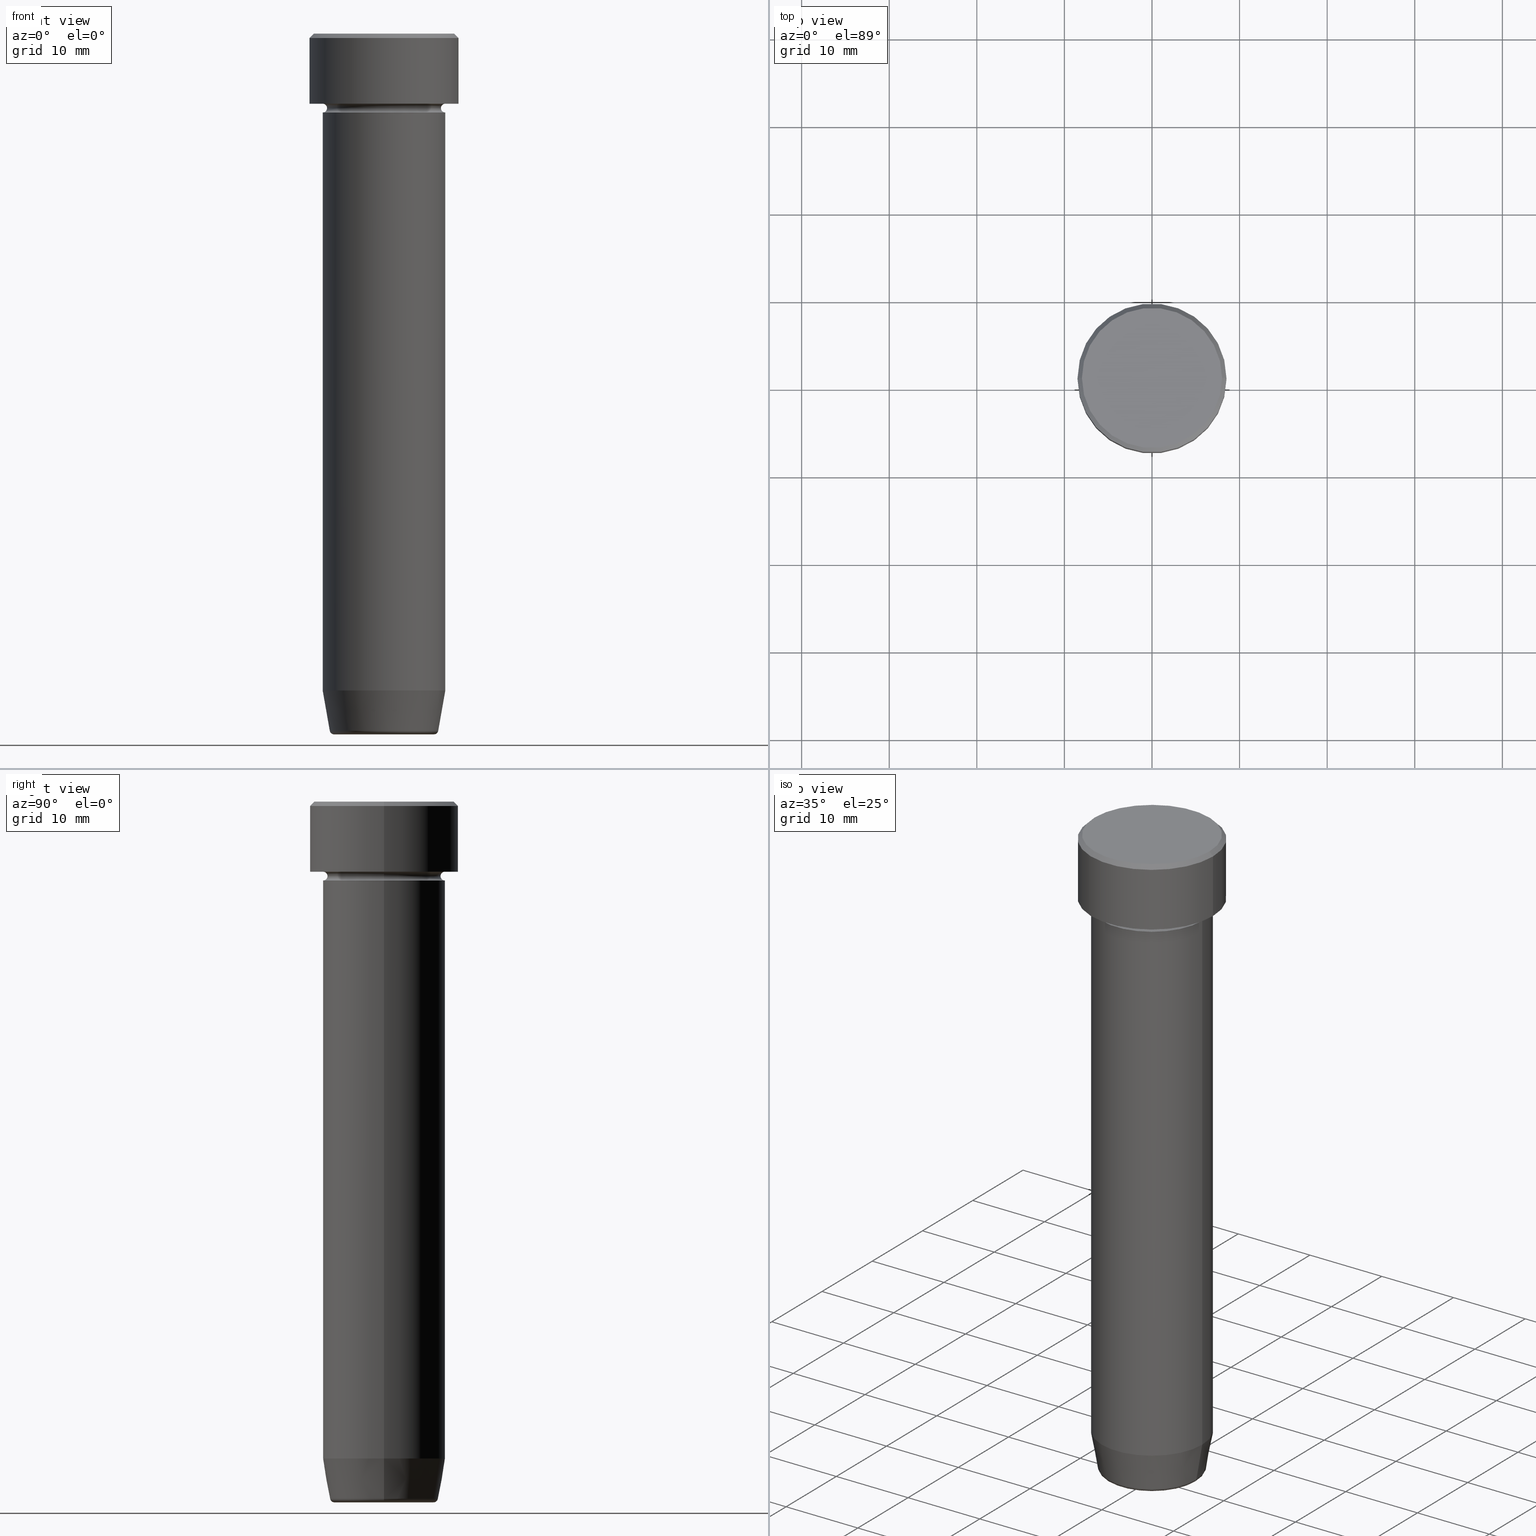
[diagram: canonical four-view strip — front | top / right | iso, engineering-drawing reading convention]
A machine part, canonical four-view strip (front | top / right | iso — engineering-drawing reading convention). The complete STEP part file that produces these views, byte-faithful:
ISO-10303-21;
HEADER;
FILE_DESCRIPTION (( 'STEP AP203' ),
    '1' );
FILE_NAME ('2389.STEP',
    '2024-01-02T23:20:47',
    ( '' ),
    ( '' ),
    'SwSTEP 2.0',
    'SolidWorks 2019',
    '' );
FILE_SCHEMA (( 'CONFIG_CONTROL_DESIGN' ));
ENDSEC;

DATA;
#1 = CARTESIAN_POINT ( 'NONE',  ( 0.000000000000000000, 0.000000000000000000, -22.00000000000000000 ) ) ;
#2 = EDGE_LOOP ( 'NONE', ( #319, #564, #162, #359 ) ) ;
#3 = ADVANCED_FACE ( 'NONE', ( #129 ), #371, .T. ) ;
#4 = ORIENTED_EDGE ( 'NONE', *, *, #369, .F. ) ;
#5 = DIRECTION ( 'NONE',  ( -0.000000000000000000, -0.000000000000000000, 1.000000000000000000 ) ) ;
#6 = LOCAL_TIME ( 0, 20, 47.00000000000000000, #509 ) ;
#7 = EDGE_LOOP ( 'NONE', ( #586, #28, #495, #590 ) ) ;
#8 = AXIS2_PLACEMENT_3D ( 'NONE', #55, #420, #464 ) ;
#9 = AXIS2_PLACEMENT_3D ( 'NONE', #291, #524, #473 ) ;
#10 = AXIS2_PLACEMENT_3D ( 'NONE', #350, #42, #305 ) ;
#11 = CARTESIAN_POINT ( 'NONE',  ( 0.000000000000000000, 0.000000000000000000, -75.00000000000000000 ) ) ;
#12 = VERTEX_POINT ( 'NONE', #132 ) ;
#13 = CARTESIAN_POINT ( 'NONE',  ( -7.000000000000000888, 8.572527594031474176E-16, -9.000000000000001776 ) ) ;
#14 = CC_DESIGN_PERSON_AND_ORGANIZATION_ASSIGNMENT ( #339, #137, ( #82 ) ) ;
#15 = CARTESIAN_POINT ( 'NONE',  ( 0.000000000000000000, 0.000000000000000000, 0.000000000000000000 ) ) ;
#16 = DIRECTION ( 'NONE',  ( 1.000000000000000000, 0.000000000000000000, 0.000000000000000000 ) ) ;
#17 = EDGE_CURVE ( 'NONE', #148, #322, #517, .T. ) ;
#18 = CARTESIAN_POINT ( 'NONE',  ( -8.500000000000000000, 1.040949779275250140E-15, -8.000000000000000000 ) ) ;
#19 = PERSON_AND_ORGANIZATION ( #201, #597 ) ;
#20 = LINE ( 'NONE', #409, #103 ) ;
#21 = CARTESIAN_POINT ( 'NONE',  ( 0.000000000000000000, 0.000000000000000000, -8.000000000000000000 ) ) ;
#22 = EDGE_CURVE ( 'NONE', #341, #109, #367, .T. ) ;
#23 = APPLICATION_PROTOCOL_DEFINITION ( 'international standard', 'config_control_design', 1994, #209 ) ;
#24 = CARTESIAN_POINT ( 'NONE',  ( -6.999999999999999112, 8.572527594031472204E-16, -75.00000000000000000 ) ) ;
#25 = PRODUCT ( '2389', '2389', '', ( #574 ) ) ;
#26 = DIRECTION ( 'NONE',  ( 0.000000000000000000, 0.000000000000000000, -1.000000000000000000 ) ) ;
#27 = EDGE_LOOP ( 'NONE', ( #463, #412 ) ) ;
#28 = ORIENTED_EDGE ( 'NONE', *, *, #489, .T. ) ;
#29 = EDGE_CURVE ( 'NONE', #541, #38, #196, .T. ) ;
#30 = VECTOR ( 'NONE', #508, 999.9999999999998863 ) ;
#31 = LINE ( 'NONE', #349, #143 ) ;
#32 = ORIENTED_EDGE ( 'NONE', *, *, #513, .T. ) ;
#33 = EDGE_CURVE ( 'NONE', #240, #87, #31, .T. ) ;
#34 = DIRECTION ( 'NONE',  ( 0.000000000000000000, -1.000000000000000000, 0.000000000000000000 ) ) ;
#35 = ORIENTED_EDGE ( 'NONE', *, *, #419, .F. ) ;
#36 = DIRECTION ( 'NONE',  ( -0.000000000000000000, -0.000000000000000000, 1.000000000000000000 ) ) ;
#37 = PLANE ( 'NONE',  #54 ) ;
#38 = VERTEX_POINT ( 'NONE', #262 ) ;
#39 = AXIS2_PLACEMENT_3D ( 'NONE', #230, #378, #380 ) ;
#40 = CARTESIAN_POINT ( 'NONE',  ( 0.000000000000000000, 0.000000000000000000, -79.58682408883346682 ) ) ;
#41 = CARTESIAN_POINT ( 'NONE',  ( -6.999999999999999112, 8.572527594031472204E-16, 0.000000000000000000 ) ) ;
#42 = DIRECTION ( 'NONE',  ( 1.224646799147353207E-16, 1.000000000000000000, 0.000000000000000000 ) ) ;
#43 = VECTOR ( 'NONE', #144, 1000.000000000000000 ) ;
#44 = ADVANCED_FACE ( 'NONE', ( #303 ), #72, .T. ) ;
#45 = DIRECTION ( 'NONE',  ( 1.000000000000000000, 0.000000000000000000, 0.000000000000000000 ) ) ;
#46 = CARTESIAN_POINT ( 'NONE',  ( -7.000000000000000888, 0.000000000000000000, -8.500000000000000000 ) ) ;
#47 = EDGE_LOOP ( 'NONE', ( #494, #440, #4, #277 ) ) ;
#48 = CARTESIAN_POINT ( 'NONE',  ( 0.000000000000000000, 0.000000000000000000, 0.000000000000000000 ) ) ;
#49 = AXIS2_PLACEMENT_3D ( 'NONE', #90, #465, #16 ) ;
#50 = CONICAL_SURFACE ( 'NONE', #281, 8.000000000000000000, 0.7853981633974500554 ) ;
#51 = ADVANCED_FACE ( 'NONE', ( #84 ), #212, .T. ) ;
#52 = DIRECTION ( 'NONE',  ( -0.000000000000000000, -0.000000000000000000, 1.000000000000000000 ) ) ;
#53 = CARTESIAN_POINT ( 'NONE',  ( -6.999999999999999112, 8.572527594031472204E-16, -22.00000000000000000 ) ) ;
#54 = AXIS2_PLACEMENT_3D ( 'NONE', #153, #598, #394 ) ;
#55 = CARTESIAN_POINT ( 'NONE',  ( 0.000000000000000000, 0.000000000000000000, 0.000000000000000000 ) ) ;
#56 = ORIENTED_EDGE ( 'NONE', *, *, #265, .T. ) ;
#57 = EDGE_CURVE ( 'NONE', #240, #12, #423, .T. ) ;
#58 = EDGE_LOOP ( 'NONE', ( #454, #328, #171, #111 ) ) ;
#59 = ADVANCED_FACE ( 'NONE', ( #501 ), #368, .F. ) ;
#60 = PLANE ( 'NONE',  #141 ) ;
#61 = DIRECTION ( 'NONE',  ( 1.000000000000000000, 0.000000000000000000, 0.000000000000000000 ) ) ;
#62 = DIRECTION ( 'NONE',  ( -1.000000000000000000, 0.000000000000000000, -0.000000000000000000 ) ) ;
#63 = AXIS2_PLACEMENT_3D ( 'NONE', #48, #233, #138 ) ;
#64 = CARTESIAN_POINT ( 'NONE',  ( 0.000000000000000000, 0.000000000000000000, 0.000000000000000000 ) ) ;
#65 =( NAMED_UNIT ( * ) SI_UNIT ( $, .STERADIAN. ) SOLID_ANGLE_UNIT ( ) );
#66 = EDGE_LOOP ( 'NONE', ( #477, #498 ) ) ;
#67 = ORIENTED_EDGE ( 'NONE', *, *, #204, .F. ) ;
#68 = LINE ( 'NONE', #353, #112 ) ;
#69 = DIRECTION ( 'NONE',  ( -0.000000000000000000, -0.000000000000000000, 1.000000000000000000 ) ) ;
#70 = ORIENTED_EDGE ( 'NONE', *, *, #513, .F. ) ;
#71 = EDGE_CURVE ( 'NONE', #480, #300, #260, .T. ) ;
#72 = CYLINDRICAL_SURFACE ( 'NONE', #195, 6.999999999999999112 ) ;
#73 = DATE_AND_TIME ( #485, #437 ) ;
#74 = DIRECTION ( 'NONE',  ( 1.000000000000000000, 0.000000000000000000, 0.000000000000000000 ) ) ;
#75 = EDGE_LOOP ( 'NONE', ( #284, #227, #215, #595 ) ) ;
#76 = PLANE ( 'NONE',  #421 ) ;
#77 = COORDINATED_UNIVERSAL_TIME_OFFSET ( 1, 0, .AHEAD. ) ;
#78 = AXIS2_PLACEMENT_3D ( 'NONE', #267, #358, #117 ) ;
#79 = APPROVAL_DATE_TIME ( #561, #436 ) ;
#80 = CARTESIAN_POINT ( 'NONE',  ( 0.000000000000000000, 0.000000000000000000, -80.00000000000001421 ) ) ;
#81 = CARTESIAN_POINT ( 'NONE',  ( 5.698815280869032662, 0.000000000000000000, -79.50000000000001421 ) ) ;
#82 = PRODUCT_DEFINITION_FORMATION_WITH_SPECIFIED_SOURCE ( 'LIBOVOLN�', '', #25, .NOT_KNOWN. ) ;
#83 = CIRCLE ( 'NONE', #562, 6.999999999999999112 ) ;
#84 = FACE_OUTER_BOUND ( 'NONE', #75, .T. ) ;
#85 = DIRECTION ( 'NONE',  ( 1.000000000000000000, 0.000000000000000000, 0.000000000000000000 ) ) ;
#86 = ORIENTED_EDGE ( 'NONE', *, *, #173, .F. ) ;
#87 = VERTEX_POINT ( 'NONE', #169 ) ;
#88 = EDGE_CURVE ( 'NONE', #480, #390, #228, .T. ) ;
#89 = CARTESIAN_POINT ( 'NONE',  ( 0.000000000000000000, 0.000000000000000000, -0.4999999999999987232 ) ) ;
#90 = CARTESIAN_POINT ( 'NONE',  ( 0.000000000000000000, 0.000000000000000000, -80.00000000000001421 ) ) ;
#91 = DIRECTION ( 'NONE',  ( -0.000000000000000000, -0.000000000000000000, 1.000000000000000000 ) ) ;
#92 = CARTESIAN_POINT ( 'NONE',  ( 0.000000000000000000, 0.000000000000000000, -79.50000000000001421 ) ) ;
#93 = ADVANCED_FACE ( 'NONE', ( #589 ), #37, .F. ) ;
#94 = PERSON_AND_ORGANIZATION ( #201, #597 ) ;
#95 = DIRECTION ( 'NONE',  ( -0.000000000000000000, -0.000000000000000000, 1.000000000000000000 ) ) ;
#96 = DIRECTION ( 'NONE',  ( -0.000000000000000000, -0.000000000000000000, 1.000000000000000000 ) ) ;
#97 = EDGE_CURVE ( 'NONE', #386, #541, #455, .T. ) ;
#98 = CARTESIAN_POINT ( 'NONE',  ( 0.000000000000000000, 0.000000000000000000, -0.4999999999999987232 ) ) ;
#99 = CIRCLE ( 'NONE', #429, 6.191219157375138948 ) ;
#100 = DIRECTION ( 'NONE',  ( 1.000000000000000000, 0.000000000000000000, 0.000000000000000000 ) ) ;
#101 = CC_DESIGN_DATE_AND_TIME_ASSIGNMENT ( #496, #266, ( #411 ) ) ;
#102 = AXIS2_PLACEMENT_3D ( 'NONE', #332, #96, #426 ) ;
#103 = VECTOR ( 'NONE', #190, 1000.000000000000000 ) ;
#104 = EDGE_CURVE ( 'NONE', #298, #109, #99, .T. ) ;
#105 =( LENGTH_UNIT ( ) NAMED_UNIT ( * ) SI_UNIT ( .MILLI., .METRE. ) );
#106 = ORIENTED_EDGE ( 'NONE', *, *, #582, .T. ) ;
#107 = DIRECTION ( 'NONE',  ( -0.000000000000000000, -1.000000000000000000, -0.000000000000000000 ) ) ;
#108 = APPROVAL ( #116, 'NEUR�EN�' ) ;
#109 = VERTEX_POINT ( 'NONE', #479 ) ;
#110 = DIRECTION ( 'NONE',  ( -0.000000000000000000, -0.000000000000000000, 1.000000000000000000 ) ) ;
#111 = ORIENTED_EDGE ( 'NONE', *, *, #327, .F. ) ;
#112 = VECTOR ( 'NONE', #155, 999.9999999999998863 ) ;
#113 = CIRCLE ( 'NONE', #248, 0.5000000000000004441 ) ;
#114 = DIRECTION ( 'NONE',  ( -0.000000000000000000, -0.000000000000000000, 1.000000000000000000 ) ) ;
#115 = EDGE_CURVE ( 'NONE', #223, #480, #253, .T. ) ;
#116 = APPROVAL_STATUS ( 'not_yet_approved' ) ;
#117 = DIRECTION ( 'NONE',  ( -1.000000000000000000, 0.000000000000000000, 0.000000000000000000 ) ) ;
#118 = PLANE ( 'NONE',  #384 ) ;
#119 = EDGE_LOOP ( 'NONE', ( #551, #263, #555, #208 ) ) ;
#120 = AXIS2_PLACEMENT_3D ( 'NONE', #181, #95, #570 ) ;
#121 = ADVANCED_FACE ( 'NONE', ( #550 ), #118, .T. ) ;
#122 = EDGE_LOOP ( 'NONE', ( #346, #478, #282, #166 ) ) ;
#123 = ADVANCED_BREP_SHAPE_REPRESENTATION ( '2389', ( #391, #193, #184 ), #407 ) ;
#124 = CYLINDRICAL_SURFACE ( 'NONE', #408, 8.500000000000000000 ) ;
#125 = ORIENTED_EDGE ( 'NONE', *, *, #136, .F. ) ;
#126 = ADVANCED_FACE ( 'NONE', ( #316 ), #583, .T. ) ;
#127 = LINE ( 'NONE', #234, #30 ) ;
#128 = DIRECTION ( 'NONE',  ( -0.000000000000000000, -0.000000000000000000, 1.000000000000000000 ) ) ;
#129 = FACE_OUTER_BOUND ( 'NONE', #405, .T. ) ;
#130 = FACE_BOUND ( 'NONE', #175, .T. ) ;
#131 = CC_DESIGN_APPROVAL ( #180, ( #411 ) ) ;
#132 = CARTESIAN_POINT ( 'NONE',  ( 8.000000000000000000, 1.010333609296566550E-15, 0.000000000000000000 ) ) ;
#133 = VECTOR ( 'NONE', #576, 1000.000000000000000 ) ;
#134 = EDGE_CURVE ( 'NONE', #276, #158, #207, .T. ) ;
#135 = CARTESIAN_POINT ( 'NONE',  ( 0.000000000000000000, 8.500000000000000000, -8.000000000000000000 ) ) ;
#136 = EDGE_CURVE ( 'NONE', #560, #298, #313, .T. ) ;
#137 = PERSON_AND_ORGANIZATION_ROLE ( 'creator' ) ;
#138 = DIRECTION ( 'NONE',  ( 1.000000000000000000, 0.000000000000000000, 0.000000000000000000 ) ) ;
#139 = FACE_OUTER_BOUND ( 'NONE', #7, .T. ) ;
#140 = EDGE_LOOP ( 'NONE', ( #257, #534, #67, #179 ) ) ;
#141 = AXIS2_PLACEMENT_3D ( 'NONE', #135, #238, #469 ) ;
#142 = DIRECTION ( 'NONE',  ( -0.000000000000000000, -0.000000000000000000, 1.000000000000000000 ) ) ;
#143 = VECTOR ( 'NONE', #484, 1000.000000000000000 ) ;
#144 = DIRECTION ( 'NONE',  ( -0.000000000000000000, -0.000000000000000000, 1.000000000000000000 ) ) ;
#145 = ADVANCED_FACE ( 'NONE', ( #161 ), #343, .F. ) ;
#146 = DIRECTION ( 'NONE',  ( -1.000000000000000000, 0.000000000000000000, 0.000000000000000000 ) ) ;
#147 = CARTESIAN_POINT ( 'NONE',  ( 8.000000000000000000, 9.797174393178825657E-16, 0.000000000000000000 ) ) ;
#148 = VERTEX_POINT ( 'NONE', #354 ) ;
#149 = CLOSED_SHELL ( 'NONE', ( #500, #548, #532, #150, #3, #126, #93, #569 ) ) ;
#150 = ADVANCED_FACE ( 'NONE', ( #312 ), #497, .F. ) ;
#151 = CARTESIAN_POINT ( 'NONE',  ( 0.000000000000000000, 0.000000000000000000, 0.000000000000000000 ) ) ;
#152 = ORIENTED_EDGE ( 'NONE', *, *, #582, .F. ) ;
#153 = CARTESIAN_POINT ( 'NONE',  ( 0.000000000000000000, 3.673940397442061544E-15, -80.00000000000001421 ) ) ;
#154 = VERTEX_POINT ( 'NONE', #24 ) ;
#155 = DIRECTION ( 'NONE',  ( -0.1736481776669298038, 2.126576849575764827E-17, 0.9848077530122082424 ) ) ;
#156 = ORIENTED_EDGE ( 'NONE', *, *, #342, .T. ) ;
#157 = DIRECTION ( 'NONE',  ( 1.000000000000000000, 0.000000000000000000, 0.000000000000000000 ) ) ;
#158 = VERTEX_POINT ( 'NONE', #241 ) ;
#159 = CARTESIAN_POINT ( 'NONE',  ( -8.000000000000000000, 0.000000000000000000, 0.000000000000000000 ) ) ;
#160 = CARTESIAN_POINT ( 'NONE',  ( 6.999999999999999112, 0.000000000000000000, 0.000000000000000000 ) ) ;
#161 = FACE_OUTER_BOUND ( 'NONE', #460, .T. ) ;
#162 = ORIENTED_EDGE ( 'NONE', *, *, #467, .T. ) ;
#163 = CIRCLE ( 'NONE', #382, 5.698815280869032662 ) ;
#164 = CARTESIAN_POINT ( 'NONE',  ( 0.000000000000000000, 0.000000000000000000, -79.58682408883346682 ) ) ;
#165 = AXIS2_PLACEMENT_3D ( 'NONE', #536, #396, #546 ) ;
#166 = ORIENTED_EDGE ( 'NONE', *, *, #231, .F. ) ;
#167 = CARTESIAN_POINT ( 'NONE',  ( 6.999999999999999112, 0.000000000000000000, -22.00000000000000000 ) ) ;
#168 = CARTESIAN_POINT ( 'NONE',  ( 7.000000000000000888, 8.572527594031474176E-16, -8.500000000000000000 ) ) ;
#169 = CARTESIAN_POINT ( 'NONE',  ( -8.500000000000000000, 1.040949779275250140E-15, -0.4999999999999987232 ) ) ;
#170 = DIRECTION ( 'NONE',  ( 1.000000000000000000, 0.000000000000000000, 0.000000000000000000 ) ) ;
#171 = ORIENTED_EDGE ( 'NONE', *, *, #379, .T. ) ;
#172 = LOCAL_TIME ( 0, 20, 47.00000000000000000, #77 ) ;
#173 = EDGE_CURVE ( 'NONE', #299, #87, #428, .T. ) ;
#174 = CALENDAR_DATE ( 2024, 3, 1 ) ;
#175 = EDGE_LOOP ( 'NONE', ( #565, #32 ) ) ;
#176 = CARTESIAN_POINT ( 'NONE',  ( 0.000000000000000000, 0.000000000000000000, -22.00000000000000000 ) ) ;
#177 = AXIS2_PLACEMENT_3D ( 'NONE', #389, #592, #157 ) ;
#178 = CYLINDRICAL_SURFACE ( 'NONE', #580, 6.999999999999999112 ) ;
#179 = ORIENTED_EDGE ( 'NONE', *, *, #88, .F. ) ;
#180 = APPROVAL ( #337, 'NEUR�EN�' ) ;
#181 = CARTESIAN_POINT ( 'NONE',  ( 0.000000000000000000, 0.000000000000000000, -9.000000000000001776 ) ) ;
#182 = CARTESIAN_POINT ( 'NONE',  ( 5.698815280869032662, 0.000000000000000000, -80.00000000000001421 ) ) ;
#183 = COORDINATED_UNIVERSAL_TIME_OFFSET ( 1, 0, .AHEAD. ) ;
#184 = AXIS2_PLACEMENT_3D ( 'NONE', #64, #374, #61 ) ;
#185 = CIRCLE ( 'NONE', #366, 7.000000000000000000 ) ;
#186 = CALENDAR_DATE ( 2024, 3, 1 ) ;
#187 = LINE ( 'NONE', #377, #133 ) ;
#188 = DIRECTION ( 'NONE',  ( -0.000000000000000000, -0.000000000000000000, 1.000000000000000000 ) ) ;
#189 = PERSON_AND_ORGANIZATION_ROLE ( 'design_owner' ) ;
#190 = DIRECTION ( 'NONE',  ( -0.000000000000000000, -0.000000000000000000, 1.000000000000000000 ) ) ;
#191 = DIRECTION ( 'NONE',  ( 1.000000000000000000, 0.000000000000000000, 0.000000000000000000 ) ) ;
#192 = APPROVAL_DATE_TIME ( #232, #108 ) ;
#193 = MANIFOLD_SOLID_BREP ( 'Zaoblit4', #149 ) ;
#194 = AXIS2_PLACEMENT_3D ( 'NONE', #89, #285, #471 ) ;
#195 = AXIS2_PLACEMENT_3D ( 'NONE', #588, #447, #220 ) ;
#196 = LINE ( 'NONE', #160, #410 ) ;
#197 = DIRECTION ( 'NONE',  ( 1.000000000000000000, 0.000000000000000000, 0.000000000000000000 ) ) ;
#198 = CIRCLE ( 'NONE', #552, 7.000000000000000888 ) ;
#199 = APPROVAL_STATUS ( 'not_yet_approved' ) ;
#200 = EDGE_LOOP ( 'NONE', ( #318, #568, #544, #302 ) ) ;
#201 = PERSON ( 'NEUR�EN�', 'NEUR�EN�', 'NEUR�EN�', ('NEUR�EN�'), ('NEUR�EN�'), ('NEUR�EN�') ) ;
#202 = TOROIDAL_SURFACE ( 'NONE', #336, 7.000000000000000888, 0.5000000000000000000 ) ;
#203 = ORIENTED_EDGE ( 'NONE', *, *, #327, .T. ) ;
#204 = EDGE_CURVE ( 'NONE', #390, #575, #198, .T. ) ;
#205 = DIRECTION ( 'NONE',  ( -0.000000000000000000, -0.000000000000000000, 1.000000000000000000 ) ) ;
#206 = DIRECTION ( 'NONE',  ( -0.000000000000000000, -0.000000000000000000, 1.000000000000000000 ) ) ;
#207 = CIRCLE ( 'NONE', #567, 6.999999999999999112 ) ;
#208 = ORIENTED_EDGE ( 'NONE', *, *, #29, .F. ) ;
#209 = APPLICATION_CONTEXT ( 'configuration controlled 3d designs of mechanical parts and assemblies' ) ;
#210 = DIRECTION ( 'NONE',  ( -1.000000000000000000, 0.000000000000000000, 0.000000000000000000 ) ) ;
#211 = DIRECTION ( 'NONE',  ( 1.000000000000000000, 0.000000000000000000, 0.000000000000000000 ) ) ;
#212 = CYLINDRICAL_SURFACE ( 'NONE', #387, 6.999999999999999112 ) ;
#213 = ADVANCED_FACE ( 'NONE', ( #528 ), #286, .F. ) ;
#214 = TOROIDAL_SURFACE ( 'NONE', #522, 5.698815280869032662, 0.5000000000000000000 ) ;
#215 = ORIENTED_EDGE ( 'NONE', *, *, #29, .T. ) ;
#216 = CARTESIAN_POINT ( 'NONE',  ( 0.000000000000000000, 0.000000000000000000, -9.000000000000001776 ) ) ;
#217 = DIRECTION ( 'NONE',  ( 1.000000000000000000, 0.000000000000000000, 0.000000000000000000 ) ) ;
#218 = EDGE_CURVE ( 'NONE', #341, #560, #163, .T. ) ;
#219 = CARTESIAN_POINT ( 'NONE',  ( -6.500000000000000888, 8.266365894244635319E-16, -8.500000000000000000 ) ) ;
#220 = DIRECTION ( 'NONE',  ( 1.000000000000000000, 0.000000000000000000, 0.000000000000000000 ) ) ;
#221 = ORIENTED_EDGE ( 'NONE', *, *, #475, .F. ) ;
#222 = AXIS2_PLACEMENT_3D ( 'NONE', #46, #107, #402 ) ;
#223 = VERTEX_POINT ( 'NONE', #430 ) ;
#224 = COORDINATED_UNIVERSAL_TIME_OFFSET ( 1, 0, .AHEAD. ) ;
#225 = AXIS2_PLACEMENT_3D ( 'NONE', #261, #5, #563 ) ;
#226 = CARTESIAN_POINT ( 'NONE',  ( 8.500000000000000000, 0.000000000000000000, -0.4999999999999987232 ) ) ;
#227 = ORIENTED_EDGE ( 'NONE', *, *, #97, .T. ) ;
#228 = CIRCLE ( 'NONE', #222, 0.5000000000000004441 ) ;
#229 = FACE_OUTER_BOUND ( 'NONE', #254, .T. ) ;
#230 = CARTESIAN_POINT ( 'NONE',  ( 0.000000000000000000, 0.000000000000000000, -75.00000000000000000 ) ) ;
#231 = EDGE_CURVE ( 'NONE', #322, #87, #432, .T. ) ;
#232 = DATE_AND_TIME ( #186, #587 ) ;
#233 = DIRECTION ( 'NONE',  ( -0.000000000000000000, -0.000000000000000000, 1.000000000000000000 ) ) ;
#234 = CARTESIAN_POINT ( 'NONE',  ( 6.118365096457673680, 0.000000000000000000, -80.00000000000001421 ) ) ;
#235 = CONICAL_SURFACE ( 'NONE', #49, 6.118365096457673680, 0.1745329251994324482 ) ;
#236 = ORIENTED_EDGE ( 'NONE', *, *, #360, .F. ) ;
#237 = PERSON_AND_ORGANIZATION_ROLE ( 'design_supplier' ) ;
#238 = DIRECTION ( 'NONE',  ( 0.000000000000000000, 0.000000000000000000, -1.000000000000000000 ) ) ;
#239 = FACE_OUTER_BOUND ( 'NONE', #200, .T. ) ;
#240 = VERTEX_POINT ( 'NONE', #159 ) ;
#241 = CARTESIAN_POINT ( 'NONE',  ( -6.999999999999999112, 8.572527594031472204E-16, -22.00000000000000000 ) ) ;
#242 = DIRECTION ( 'NONE',  ( 1.000000000000000000, 0.000000000000000000, 0.000000000000000000 ) ) ;
#243 = ADVANCED_FACE ( 'NONE', ( #352 ), #50, .T. ) ;
#244 = DIRECTION ( 'NONE',  ( -0.000000000000000000, -0.000000000000000000, 1.000000000000000000 ) ) ;
#245 = CIRCLE ( 'NONE', #395, 6.999999999999999112 ) ;
#246 = AXIS2_PLACEMENT_3D ( 'NONE', #151, #205, #45 ) ;
#247 = DIRECTION ( 'NONE',  ( 0.7071067811865487940, 8.659560562354950115E-17, -0.7071067811865463515 ) ) ;
#248 = AXIS2_PLACEMENT_3D ( 'NONE', #417, #329, #280 ) ;
#249 = DIRECTION ( 'NONE',  ( 1.000000000000000000, 0.000000000000000000, 0.000000000000000000 ) ) ;
#250 = ADVANCED_FACE ( 'NONE', ( #490 ), #76, .T. ) ;
#251 = CC_DESIGN_PERSON_AND_ORGANIZATION_ASSIGNMENT ( #19, #189, ( #25 ) ) ;
#252 = EDGE_LOOP ( 'NONE', ( #56, #355 ) ) ;
#253 = CIRCLE ( 'NONE', #527, 6.500000000000000888 ) ;
#254 = EDGE_LOOP ( 'NONE', ( #106, #269, #330, #520 ) ) ;
#255 = APPROVAL_PERSON_ORGANIZATION ( #344, #436, #278 ) ;
#256 = DIRECTION ( 'NONE',  ( 0.000000000000000000, -0.000000000000000000, 1.000000000000000000 ) ) ;
#257 = ORIENTED_EDGE ( 'NONE', *, *, #579, .T. ) ;
#258 = AXIS2_PLACEMENT_3D ( 'NONE', #462, #52, #415 ) ;
#259 = DIRECTION ( 'NONE',  ( 0.000000000000000000, 0.000000000000000000, -1.000000000000000000 ) ) ;
#260 = CIRCLE ( 'NONE', #10, 0.5000000000000004441 ) ;
#261 = CARTESIAN_POINT ( 'NONE',  ( 0.000000000000000000, 0.000000000000000000, -8.000000000000000000 ) ) ;
#262 = CARTESIAN_POINT ( 'NONE',  ( 7.000000000000000000, 0.000000000000000000, -9.000000000000001776 ) ) ;
#263 = ORIENTED_EDGE ( 'NONE', *, *, #433, .T. ) ;
#264 = CARTESIAN_POINT ( 'NONE',  ( 0.000000000000000000, 6.999999999999999112, -22.00000000000000000 ) ) ;
#265 = EDGE_CURVE ( 'NONE', #560, #341, #510, .T. ) ;
#266 = DATE_TIME_ROLE ( 'creation_date' ) ;
#267 = CARTESIAN_POINT ( 'NONE',  ( 0.000000000000000000, 0.000000000000000000, -8.500000000000000000 ) ) ;
#268 = AXIS2_PLACEMENT_3D ( 'NONE', #81, #34, #593 ) ;
#269 = ORIENTED_EDGE ( 'NONE', *, *, #173, .T. ) ;
#270 = COORDINATED_UNIVERSAL_TIME_OFFSET ( 1, 0, .AHEAD. ) ;
#271 = CARTESIAN_POINT ( 'NONE',  ( 0.000000000000000000, 0.000000000000000000, -22.00000000000000000 ) ) ;
#272 = AXIS2_PLACEMENT_3D ( 'NONE', #168, #361, #553 ) ;
#273 = EDGE_LOOP ( 'NONE', ( #507, #503, #504, #35 ) ) ;
#274 = DIRECTION ( 'NONE',  ( 1.000000000000000000, 0.000000000000000000, 0.000000000000000000 ) ) ;
#275 = EDGE_CURVE ( 'NONE', #109, #298, #356, .T. ) ;
#276 = VERTEX_POINT ( 'NONE', #167 ) ;
#277 = ORIENTED_EDGE ( 'NONE', *, *, #33, .F. ) ;
#278 = APPROVAL_ROLE ( '' ) ;
#279 = ORIENTED_EDGE ( 'NONE', *, *, #231, .T. ) ;
#280 = DIRECTION ( 'NONE',  ( 0.000000000000000000, 0.000000000000000000, -1.000000000000000000 ) ) ;
#281 = AXIS2_PLACEMENT_3D ( 'NONE', #542, #259, #210 ) ;
#282 = ORIENTED_EDGE ( 'NONE', *, *, #33, .T. ) ;
#283 = CARTESIAN_POINT ( 'NONE',  ( 0.000000000000000000, 0.000000000000000000, -8.000000000000000000 ) ) ;
#284 = ORIENTED_EDGE ( 'NONE', *, *, #433, .F. ) ;
#285 = DIRECTION ( 'NONE',  ( 0.000000000000000000, 0.000000000000000000, -1.000000000000000000 ) ) ;
#286 = TOROIDAL_SURFACE ( 'NONE', #434, 7.000000000000000888, 0.5000000000000000000 ) ;
#287 = DIRECTION ( 'NONE',  ( -0.000000000000000000, -0.000000000000000000, 1.000000000000000000 ) ) ;
#288 = ORIENTED_EDGE ( 'NONE', *, *, #104, .F. ) ;
#289 = DIRECTION ( 'NONE',  ( 1.000000000000000000, 0.000000000000000000, 0.000000000000000000 ) ) ;
#290 = CIRCLE ( 'NONE', #365, 8.500000000000000000 ) ;
#291 = CARTESIAN_POINT ( 'NONE',  ( -5.698815280869032662, 6.979035892648284800E-16, -79.50000000000001421 ) ) ;
#292 = AXIS2_PLACEMENT_3D ( 'NONE', #176, #91, #414 ) ;
#293 = EDGE_CURVE ( 'NONE', #223, #38, #113, .T. ) ;
#294 = DIRECTION ( 'NONE',  ( -0.000000000000000000, -0.000000000000000000, 1.000000000000000000 ) ) ;
#295 = DIRECTION ( 'NONE',  ( 0.000000000000000000, 0.000000000000000000, -1.000000000000000000 ) ) ;
#296 = ADVANCED_FACE ( 'NONE', ( #229 ), #124, .T. ) ;
#297 = CONICAL_SURFACE ( 'NONE', #8, 8.000000000000000000, 0.7853981633974500554 ) ;
#298 = VERTEX_POINT ( 'NONE', #518 ) ;
#299 = VERTEX_POINT ( 'NONE', #18 ) ;
#300 = VERTEX_POINT ( 'NONE', #13 ) ;
#301 = DIRECTION ( 'NONE',  ( -1.000000000000000000, 0.000000000000000000, 0.000000000000000000 ) ) ;
#302 = ORIENTED_EDGE ( 'NONE', *, *, #275, .F. ) ;
#303 = FACE_OUTER_BOUND ( 'NONE', #119, .T. ) ;
#304 = CIRCLE ( 'NONE', #272, 0.5000000000000004441 ) ;
#305 = DIRECTION ( 'NONE',  ( -1.000000000000000000, 1.224646799147351482E-16, 0.000000000000000000 ) ) ;
#306 = ORIENTED_EDGE ( 'NONE', *, *, #293, .T. ) ;
#307 = EDGE_LOOP ( 'NONE', ( #152, #578 ) ) ;
#308 = APPROVAL_DATE_TIME ( #73, #180 ) ;
#309 = CARTESIAN_POINT ( 'NONE',  ( 0.000000000000000000, 0.000000000000000000, -8.500000000000000000 ) ) ;
#310 = ORIENTED_EDGE ( 'NONE', *, *, #218, .F. ) ;
#311 = APPROVAL_ROLE ( '' ) ;
#312 = FACE_OUTER_BOUND ( 'NONE', #483, .T. ) ;
#313 = CIRCLE ( 'NONE', #268, 0.5000000000000004441 ) ;
#314 = EDGE_CURVE ( 'NONE', #12, #240, #533, .T. ) ;
#315 = CALENDAR_DATE ( 2024, 3, 1 ) ;
#316 = FACE_OUTER_BOUND ( 'NONE', #58, .T. ) ;
#317 = CC_DESIGN_APPROVAL ( #436, ( #459 ) ) ;
#318 = ORIENTED_EDGE ( 'NONE', *, *, #22, .F. ) ;
#319 = ORIENTED_EDGE ( 'NONE', *, *, #579, .F. ) ;
#320 = DIRECTION ( 'NONE',  ( 1.000000000000000000, 0.000000000000000000, 0.000000000000000000 ) ) ;
#321 = EDGE_LOOP ( 'NONE', ( #310, #448, #288, #125 ) ) ;
#322 = VERTEX_POINT ( 'NONE', #226 ) ;
#323 = CARTESIAN_POINT ( 'NONE',  ( 0.000000000000000000, 0.000000000000000000, -8.500000000000000000 ) ) ;
#324 = EDGE_LOOP ( 'NONE', ( #86, #470, #435, #279 ) ) ;
#325 = APPROVAL_PERSON_ORGANIZATION ( #446, #108, #311 ) ;
#326 = FACE_OUTER_BOUND ( 'NONE', #307, .T. ) ;
#327 = EDGE_CURVE ( 'NONE', #154, #488, #83, .T. ) ;
#328 = ORIENTED_EDGE ( 'NONE', *, *, #275, .T. ) ;
#329 = DIRECTION ( 'NONE',  ( 0.000000000000000000, -1.000000000000000000, 0.000000000000000000 ) ) ;
#330 = ORIENTED_EDGE ( 'NONE', *, *, #369, .T. ) ;
#331 = CARTESIAN_POINT ( 'NONE',  ( -5.698815280869032662, 7.280546308273760746E-16, -80.00000000000001421 ) ) ;
#332 = CARTESIAN_POINT ( 'NONE',  ( 0.000000000000000000, 0.000000000000000000, -8.500000000000000000 ) ) ;
#333 = CARTESIAN_POINT ( 'NONE',  ( 8.500000000000000000, 0.000000000000000000, 0.000000000000000000 ) ) ;
#334 =( NAMED_UNIT ( * ) PLANE_ANGLE_UNIT ( ) SI_UNIT ( $, .RADIAN. ) );
#335 = CC_DESIGN_SECURITY_CLASSIFICATION ( #459, ( #82 ) ) ;
#336 = AXIS2_PLACEMENT_3D ( 'NONE', #323, #36, #211 ) ;
#337 = APPROVAL_STATUS ( 'not_yet_approved' ) ;
#338 = LINE ( 'NONE', #147, #499 ) ;
#339 = PERSON_AND_ORGANIZATION ( #201, #597 ) ;
#340 = CARTESIAN_POINT ( 'NONE',  ( 0.000000000000000000, 0.000000000000000000, -8.000000000000000000 ) ) ;
#341 = VERTEX_POINT ( 'NONE', #331 ) ;
#342 = EDGE_CURVE ( 'NONE', #38, #300, #399, .T. ) ;
#343 = TOROIDAL_SURFACE ( 'NONE', #78, 7.000000000000000888, 0.5000000000000000000 ) ;
#344 = PERSON_AND_ORGANIZATION ( #201, #597 ) ;
#345 = AXIS2_PLACEMENT_3D ( 'NONE', #92, #287, #191 ) ;
#346 = ORIENTED_EDGE ( 'NONE', *, *, #594, .F. ) ;
#347 = DIRECTION ( 'NONE',  ( 1.000000000000000000, 0.000000000000000000, 0.000000000000000000 ) ) ;
#348 = DIRECTION ( 'NONE',  ( -0.000000000000000000, -0.000000000000000000, 1.000000000000000000 ) ) ;
#349 = CARTESIAN_POINT ( 'NONE',  ( -8.000000000000000000, 0.000000000000000000, 0.000000000000000000 ) ) ;
#350 = CARTESIAN_POINT ( 'NONE',  ( -7.000000000000000888, 8.572527594031474176E-16, -8.500000000000000000 ) ) ;
#351 = EDGE_CURVE ( 'NONE', #541, #386, #245, .T. ) ;
#352 = FACE_OUTER_BOUND ( 'NONE', #122, .T. ) ;
#353 = CARTESIAN_POINT ( 'NONE',  ( -6.118365096457673680, 7.492836231391777609E-16, -80.00000000000001421 ) ) ;
#354 = CARTESIAN_POINT ( 'NONE',  ( 8.500000000000000000, 0.000000000000000000, -8.000000000000000000 ) ) ;
#355 = ORIENTED_EDGE ( 'NONE', *, *, #218, .T. ) ;
#356 = CIRCLE ( 'NONE', #512, 6.191219157375138948 ) ;
#357 = PRODUCT_DEFINITION_SHAPE ( 'NONE', 'NONE',  #411 ) ;
#358 = DIRECTION ( 'NONE',  ( 0.000000000000000000, 0.000000000000000000, -1.000000000000000000 ) ) ;
#359 = ORIENTED_EDGE ( 'NONE', *, *, #293, .F. ) ;
#360 = EDGE_CURVE ( 'NONE', #158, #276, #438, .T. ) ;
#361 = DIRECTION ( 'NONE',  ( -1.224646799147353207E-16, 1.000000000000000000, 0.000000000000000000 ) ) ;
#362 = DIRECTION ( 'NONE',  ( 0.000000000000000000, 0.000000000000000000, -1.000000000000000000 ) ) ;
#363 = EDGE_LOOP ( 'NONE', ( #547, #502, #306, #156 ) ) ;
#364 = ORIENTED_EDGE ( 'NONE', *, *, #88, .T. ) ;
#365 = AXIS2_PLACEMENT_3D ( 'NONE', #21, #529, #100 ) ;
#366 = AXIS2_PLACEMENT_3D ( 'NONE', #216, #491, #401 ) ;
#367 = CIRCLE ( 'NONE', #9, 0.5000000000000004441 ) ;
#368 = TOROIDAL_SURFACE ( 'NONE', #525, 7.000000000000000888, 0.5000000000000000000 ) ;
#369 = EDGE_CURVE ( 'NONE', #87, #322, #572, .T. ) ;
#370 = DIRECTION ( 'NONE',  ( -0.000000000000000000, -0.000000000000000000, 1.000000000000000000 ) ) ;
#371 = CYLINDRICAL_SURFACE ( 'NONE', #258, 6.999999999999999112 ) ;
#372 = DIRECTION ( 'NONE',  ( 1.000000000000000000, 0.000000000000000000, 0.000000000000000000 ) ) ;
#373 = CARTESIAN_POINT ( 'NONE',  ( 0.000000000000000000, 0.000000000000000000, 0.000000000000000000 ) ) ;
#374 = DIRECTION ( 'NONE',  ( 0.000000000000000000, 0.000000000000000000, 1.000000000000000000 ) ) ;
#375 = CIRCLE ( 'NONE', #486, 8.500000000000000000 ) ;
#376 = ADVANCED_FACE ( 'NONE', ( #130, #326 ), #60, .T. ) ;
#377 = CARTESIAN_POINT ( 'NONE',  ( 6.999999999999999112, 0.000000000000000000, 0.000000000000000000 ) ) ;
#378 = DIRECTION ( 'NONE',  ( -0.000000000000000000, -0.000000000000000000, 1.000000000000000000 ) ) ;
#379 = EDGE_CURVE ( 'NONE', #298, #488, #127, .T. ) ;
#380 = DIRECTION ( 'NONE',  ( 1.000000000000000000, 0.000000000000000000, 0.000000000000000000 ) ) ;
#381 = CARTESIAN_POINT ( 'NONE',  ( -8.500000000000000000, 1.040949779275250140E-15, 0.000000000000000000 ) ) ;
#382 = AXIS2_PLACEMENT_3D ( 'NONE', #388, #26, #591 ) ;
#383 = ADVANCED_FACE ( 'NONE', ( #461 ), #297, .T. ) ;
#384 = AXIS2_PLACEMENT_3D ( 'NONE', #442, #256, #439 ) ;
#385 = DIRECTION ( 'NONE',  ( -0.000000000000000000, -0.000000000000000000, 1.000000000000000000 ) ) ;
#386 = VERTEX_POINT ( 'NONE', #53 ) ;
#387 = AXIS2_PLACEMENT_3D ( 'NONE', #493, #206, #274 ) ;
#388 = CARTESIAN_POINT ( 'NONE',  ( 0.000000000000000000, 0.000000000000000000, -80.00000000000001421 ) ) ;
#389 = CARTESIAN_POINT ( 'NONE',  ( 0.000000000000000000, 0.000000000000000000, -80.00000000000001421 ) ) ;
#390 = VERTEX_POINT ( 'NONE', #514 ) ;
#391 = MANIFOLD_SOLID_BREP ( 'Zkosen�1', #422 ) ;
#392 = CYLINDRICAL_SURFACE ( 'NONE', #246, 8.500000000000000000 ) ;
#393 = AXIS2_PLACEMENT_3D ( 'NONE', #1, #110, #347 ) ;
#394 = DIRECTION ( 'NONE',  ( 1.000000000000000000, 0.000000000000000000, 0.000000000000000000 ) ) ;
#395 = AXIS2_PLACEMENT_3D ( 'NONE', #573, #457, #372 ) ;
#396 = DIRECTION ( 'NONE',  ( -0.000000000000000000, -0.000000000000000000, 1.000000000000000000 ) ) ;
#397 = EDGE_CURVE ( 'NONE', #299, #148, #375, .T. ) ;
#398 = CC_DESIGN_PERSON_AND_ORGANIZATION_ASSIGNMENT ( #94, #237, ( #82 ) ) ;
#399 = CIRCLE ( 'NONE', #120, 7.000000000000000000 ) ;
#400 = DIRECTION ( 'NONE',  ( -0.000000000000000000, -0.000000000000000000, 1.000000000000000000 ) ) ;
#401 = DIRECTION ( 'NONE',  ( 1.000000000000000000, 0.000000000000000000, 0.000000000000000000 ) ) ;
#402 = DIRECTION ( 'NONE',  ( 0.000000000000000000, 0.000000000000000000, -1.000000000000000000 ) ) ;
#403 = FACE_OUTER_BOUND ( 'NONE', #324, .T. ) ;
#404 = PERSON_AND_ORGANIZATION ( #201, #597 ) ;
#405 = EDGE_LOOP ( 'NONE', ( #443, #203, #549, #236 ) ) ;
#406 = APPLICATION_CONTEXT ( 'configuration controlled 3d designs of mechanical parts and assemblies' ) ;
#407 =( GEOMETRIC_REPRESENTATION_CONTEXT ( 3 ) GLOBAL_UNCERTAINTY_ASSIGNED_CONTEXT ( ( #474 ) ) GLOBAL_UNIT_ASSIGNED_CONTEXT ( ( #105, #334, #65 ) ) REPRESENTATION_CONTEXT ( 'NONE', 'WORKASPACE' ) );
#408 = AXIS2_PLACEMENT_3D ( 'NONE', #15, #370, #521 ) ;
#409 = CARTESIAN_POINT ( 'NONE',  ( -6.999999999999999112, 8.572527594031472204E-16, 0.000000000000000000 ) ) ;
#410 = VECTOR ( 'NONE', #385, 1000.000000000000000 ) ;
#411 = PRODUCT_DEFINITION ( 'NEZN�M�', '', #82, #585 ) ;
#412 = ORIENTED_EDGE ( 'NONE', *, *, #314, .T. ) ;
#413 = CALENDAR_DATE ( 2024, 3, 1 ) ;
#414 = DIRECTION ( 'NONE',  ( 1.000000000000000000, 0.000000000000000000, 0.000000000000000000 ) ) ;
#415 = DIRECTION ( 'NONE',  ( 1.000000000000000000, 0.000000000000000000, 0.000000000000000000 ) ) ;
#416 = AXIS2_PLACEMENT_3D ( 'NONE', #271, #451, #62 ) ;
#417 = CARTESIAN_POINT ( 'NONE',  ( 7.000000000000000888, 0.000000000000000000, -8.500000000000000000 ) ) ;
#418 = CC_DESIGN_APPROVAL ( #108, ( #82 ) ) ;
#419 = EDGE_CURVE ( 'NONE', #488, #276, #187, .T. ) ;
#420 = DIRECTION ( 'NONE',  ( 0.000000000000000000, 0.000000000000000000, -1.000000000000000000 ) ) ;
#421 = AXIS2_PLACEMENT_3D ( 'NONE', #264, #444, #596 ) ;
#422 = CLOSED_SHELL ( 'NONE', ( #383, #59, #445, #44, #296, #250, #121, #476, #376, #51, #213, #145, #243 ) ) ;
#423 = CIRCLE ( 'NONE', #165, 8.000000000000000000 ) ;
#424 = SECURITY_CLASSIFICATION_LEVEL ( 'unclassified' ) ;
#425 = DIRECTION ( 'NONE',  ( -0.000000000000000000, -0.000000000000000000, 1.000000000000000000 ) ) ;
#426 = DIRECTION ( 'NONE',  ( 1.000000000000000000, 0.000000000000000000, 0.000000000000000000 ) ) ;
#427 = APPLICATION_PROTOCOL_DEFINITION ( 'international standard', 'config_control_design', 1994, #406 ) ;
#428 = LINE ( 'NONE', #381, #468 ) ;
#429 = AXIS2_PLACEMENT_3D ( 'NONE', #164, #114, #301 ) ;
#430 = CARTESIAN_POINT ( 'NONE',  ( 6.500000000000000888, 0.000000000000000000, -8.500000000000000000 ) ) ;
#431 = LOCAL_TIME ( 0, 20, 47.00000000000000000, #224 ) ;
#432 = CIRCLE ( 'NONE', #523, 8.500000000000000000 ) ;
#433 = EDGE_CURVE ( 'NONE', #386, #300, #20, .T. ) ;
#434 = AXIS2_PLACEMENT_3D ( 'NONE', #581, #244, #249 ) ;
#435 = ORIENTED_EDGE ( 'NONE', *, *, #17, .T. ) ;
#436 = APPROVAL ( #199, 'NEUR�EN�' ) ;
#437 = LOCAL_TIME ( 0, 20, 47.00000000000000000, #183 ) ;
#438 = CIRCLE ( 'NONE', #292, 6.999999999999999112 ) ;
#439 = DIRECTION ( 'NONE',  ( 1.000000000000000000, 0.000000000000000000, 0.000000000000000000 ) ) ;
#440 = ORIENTED_EDGE ( 'NONE', *, *, #594, .T. ) ;
#441 = CARTESIAN_POINT ( 'NONE',  ( 0.000000000000000000, 0.000000000000000000, -79.50000000000001421 ) ) ;
#442 = CARTESIAN_POINT ( 'NONE',  ( 0.000000000000000000, 0.000000000000000000, 0.000000000000000000 ) ) ;
#443 = ORIENTED_EDGE ( 'NONE', *, *, #458, .F. ) ;
#444 = DIRECTION ( 'NONE',  ( 0.000000000000000000, 0.000000000000000000, -1.000000000000000000 ) ) ;
#445 = ADVANCED_FACE ( 'NONE', ( #505 ), #202, .F. ) ;
#446 = PERSON_AND_ORGANIZATION ( #201, #597 ) ;
#447 = DIRECTION ( 'NONE',  ( -0.000000000000000000, -0.000000000000000000, 1.000000000000000000 ) ) ;
#448 = ORIENTED_EDGE ( 'NONE', *, *, #22, .T. ) ;
#449 = DIRECTION ( 'NONE',  ( 0.000000000000000000, 0.000000000000000000, -1.000000000000000000 ) ) ;
#450 = DATE_TIME_ROLE ( 'classification_date' ) ;
#451 = DIRECTION ( 'NONE',  ( 0.000000000000000000, 0.000000000000000000, -1.000000000000000000 ) ) ;
#452 = DIRECTION ( 'NONE',  ( -1.000000000000000000, 0.000000000000000000, 0.000000000000000000 ) ) ;
#453 = PERSON_AND_ORGANIZATION_ROLE ( 'classification_officer' ) ;
#454 = ORIENTED_EDGE ( 'NONE', *, *, #489, .F. ) ;
#455 = CIRCLE ( 'NONE', #393, 6.999999999999999112 ) ;
#456 = PERSON_AND_ORGANIZATION ( #201, #597 ) ;
#457 = DIRECTION ( 'NONE',  ( -0.000000000000000000, -0.000000000000000000, 1.000000000000000000 ) ) ;
#458 = EDGE_CURVE ( 'NONE', #154, #158, #482, .T. ) ;
#459 = SECURITY_CLASSIFICATION ( '', '', #424 ) ;
#460 = EDGE_LOOP ( 'NONE', ( #221, #537, #364, #70 ) ) ;
#461 = FACE_OUTER_BOUND ( 'NONE', #47, .T. ) ;
#462 = CARTESIAN_POINT ( 'NONE',  ( 0.000000000000000000, 0.000000000000000000, 0.000000000000000000 ) ) ;
#463 = ORIENTED_EDGE ( 'NONE', *, *, #57, .T. ) ;
#464 = DIRECTION ( 'NONE',  ( -1.000000000000000000, 0.000000000000000000, 0.000000000000000000 ) ) ;
#465 = DIRECTION ( 'NONE',  ( -0.000000000000000000, -0.000000000000000000, 1.000000000000000000 ) ) ;
#466 = APPROVAL_ROLE ( '' ) ;
#467 = EDGE_CURVE ( 'NONE', #300, #38, #185, .T. ) ;
#468 = VECTOR ( 'NONE', #142, 1000.000000000000000 ) ;
#469 = DIRECTION ( 'NONE',  ( -1.000000000000000000, 0.000000000000000000, -0.000000000000000000 ) ) ;
#470 = ORIENTED_EDGE ( 'NONE', *, *, #397, .T. ) ;
#471 = DIRECTION ( 'NONE',  ( 1.000000000000000000, 0.000000000000000000, 0.000000000000000000 ) ) ;
#472 = VECTOR ( 'NONE', #348, 1000.000000000000000 ) ;
#473 = DIRECTION ( 'NONE',  ( -1.000000000000000000, 1.224646799147351482E-16, 0.000000000000000000 ) ) ;
#474 = UNCERTAINTY_MEASURE_WITH_UNIT (LENGTH_MEASURE( 1.000000000000000082E-05 ), #105, 'distance_accuracy_value', 'NONE');
#475 = EDGE_CURVE ( 'NONE', #223, #575, #304, .T. ) ;
#476 = ADVANCED_FACE ( 'NONE', ( #403 ), #392, .T. ) ;
#477 = ORIENTED_EDGE ( 'NONE', *, *, #351, .F. ) ;
#478 = ORIENTED_EDGE ( 'NONE', *, *, #57, .F. ) ;
#479 = CARTESIAN_POINT ( 'NONE',  ( -6.191219157375138948, 8.077292158965354448E-16, -79.58682408883346682 ) ) ;
#480 = VERTEX_POINT ( 'NONE', #219 ) ;
#481 = APPROVAL_PERSON_ORGANIZATION ( #538, #180, #466 ) ;
#482 = LINE ( 'NONE', #41, #472 ) ;
#483 = EDGE_LOOP ( 'NONE', ( #506, #511 ) ) ;
#484 = DIRECTION ( 'NONE',  ( -0.7071067811865487940, 0.000000000000000000, -0.7071067811865463515 ) ) ;
#485 = CALENDAR_DATE ( 2024, 3, 1 ) ;
#486 = AXIS2_PLACEMENT_3D ( 'NONE', #283, #425, #320 ) ;
#487 = DIRECTION ( 'NONE',  ( -0.000000000000000000, -0.000000000000000000, 1.000000000000000000 ) ) ;
#488 = VERTEX_POINT ( 'NONE', #535 ) ;
#489 = EDGE_CURVE ( 'NONE', #109, #154, #68, .T. ) ;
#490 = FACE_OUTER_BOUND ( 'NONE', #66, .T. ) ;
#491 = DIRECTION ( 'NONE',  ( -0.000000000000000000, -0.000000000000000000, 1.000000000000000000 ) ) ;
#492 = PERSON_AND_ORGANIZATION_ROLE ( 'creator' ) ;
#493 = CARTESIAN_POINT ( 'NONE',  ( 0.000000000000000000, 0.000000000000000000, 0.000000000000000000 ) ) ;
#494 = ORIENTED_EDGE ( 'NONE', *, *, #314, .F. ) ;
#495 = ORIENTED_EDGE ( 'NONE', *, *, #531, .F. ) ;
#496 = DATE_AND_TIME ( #315, #172 ) ;
#497 = PLANE ( 'NONE',  #416 ) ;
#498 = ORIENTED_EDGE ( 'NONE', *, *, #97, .F. ) ;
#499 = VECTOR ( 'NONE', #247, 1000.000000000000000 ) ;
#500 = ADVANCED_FACE ( 'NONE', ( #539 ), #214, .T. ) ;
#501 = FACE_OUTER_BOUND ( 'NONE', #140, .T. ) ;
#502 = ORIENTED_EDGE ( 'NONE', *, *, #115, .F. ) ;
#503 = ORIENTED_EDGE ( 'NONE', *, *, #458, .T. ) ;
#504 = ORIENTED_EDGE ( 'NONE', *, *, #134, .F. ) ;
#505 = FACE_OUTER_BOUND ( 'NONE', #2, .T. ) ;
#506 = ORIENTED_EDGE ( 'NONE', *, *, #134, .T. ) ;
#507 = ORIENTED_EDGE ( 'NONE', *, *, #531, .T. ) ;
#508 = DIRECTION ( 'NONE',  ( 0.1736481776669298038, 0.000000000000000000, 0.9848077530122082424 ) ) ;
#509 = COORDINATED_UNIVERSAL_TIME_OFFSET ( 1, 0, .AHEAD. ) ;
#510 = CIRCLE ( 'NONE', #545, 5.698815280869032662 ) ;
#511 = ORIENTED_EDGE ( 'NONE', *, *, #360, .T. ) ;
#512 = AXIS2_PLACEMENT_3D ( 'NONE', #40, #400, #599 ) ;
#513 = EDGE_CURVE ( 'NONE', #575, #390, #571, .T. ) ;
#514 = CARTESIAN_POINT ( 'NONE',  ( -7.000000000000000888, 0.000000000000000000, -8.000000000000000000 ) ) ;
#515 = CARTESIAN_POINT ( 'NONE',  ( 6.999999999999999112, 0.000000000000000000, -22.00000000000000000 ) ) ;
#516 = CC_DESIGN_PERSON_AND_ORGANIZATION_ASSIGNMENT ( #404, #492, ( #411 ) ) ;
#517 = LINE ( 'NONE', #333, #43 ) ;
#518 = CARTESIAN_POINT ( 'NONE',  ( 6.191219157375138948, 0.000000000000000000, -79.58682408883346682 ) ) ;
#519 = CARTESIAN_POINT ( 'NONE',  ( 7.000000000000000888, 8.572527594031474176E-16, -8.000000000000000000 ) ) ;
#520 = ORIENTED_EDGE ( 'NONE', *, *, #17, .F. ) ;
#521 = DIRECTION ( 'NONE',  ( 1.000000000000000000, 0.000000000000000000, 0.000000000000000000 ) ) ;
#522 = AXIS2_PLACEMENT_3D ( 'NONE', #441, #128, #85 ) ;
#523 = AXIS2_PLACEMENT_3D ( 'NONE', #98, #295, #197 ) ;
#524 = DIRECTION ( 'NONE',  ( 1.224646799147353207E-16, 1.000000000000000000, 0.000000000000000000 ) ) ;
#525 = AXIS2_PLACEMENT_3D ( 'NONE', #309, #362, #452 ) ;
#526 = PRODUCT_RELATED_PRODUCT_CATEGORY ( 'detail', '', ( #25 ) ) ;
#527 = AXIS2_PLACEMENT_3D ( 'NONE', #554, #69, #217 ) ;
#528 = FACE_OUTER_BOUND ( 'NONE', #363, .T. ) ;
#529 = DIRECTION ( 'NONE',  ( -0.000000000000000000, -0.000000000000000000, 1.000000000000000000 ) ) ;
#530 = CIRCLE ( 'NONE', #102, 6.500000000000000888 ) ;
#531 = EDGE_CURVE ( 'NONE', #488, #154, #543, .T. ) ;
#532 = ADVANCED_FACE ( 'NONE', ( #577 ), #178, .T. ) ;
#533 = CIRCLE ( 'NONE', #63, 8.000000000000000000 ) ;
#534 = ORIENTED_EDGE ( 'NONE', *, *, #475, .T. ) ;
#535 = CARTESIAN_POINT ( 'NONE',  ( 6.999999999999999112, 0.000000000000000000, -75.00000000000000000 ) ) ;
#536 = CARTESIAN_POINT ( 'NONE',  ( 0.000000000000000000, 0.000000000000000000, 0.000000000000000000 ) ) ;
#537 = ORIENTED_EDGE ( 'NONE', *, *, #115, .T. ) ;
#538 = PERSON_AND_ORGANIZATION ( #201, #597 ) ;
#539 = FACE_OUTER_BOUND ( 'NONE', #321, .T. ) ;
#540 = CARTESIAN_POINT ( 'NONE',  ( 0.000000000000000000, 0.000000000000000000, -22.00000000000000000 ) ) ;
#541 = VERTEX_POINT ( 'NONE', #515 ) ;
#542 = CARTESIAN_POINT ( 'NONE',  ( 0.000000000000000000, 0.000000000000000000, 0.000000000000000000 ) ) ;
#543 = CIRCLE ( 'NONE', #39, 6.999999999999999112 ) ;
#544 = ORIENTED_EDGE ( 'NONE', *, *, #136, .T. ) ;
#545 = AXIS2_PLACEMENT_3D ( 'NONE', #80, #449, #170 ) ;
#546 = DIRECTION ( 'NONE',  ( 1.000000000000000000, 0.000000000000000000, 0.000000000000000000 ) ) ;
#547 = ORIENTED_EDGE ( 'NONE', *, *, #71, .F. ) ;
#548 = ADVANCED_FACE ( 'NONE', ( #139 ), #235, .T. ) ;
#549 = ORIENTED_EDGE ( 'NONE', *, *, #419, .T. ) ;
#550 = FACE_OUTER_BOUND ( 'NONE', #27, .T. ) ;
#551 = ORIENTED_EDGE ( 'NONE', *, *, #351, .T. ) ;
#552 = AXIS2_PLACEMENT_3D ( 'NONE', #340, #294, #146 ) ;
#553 = DIRECTION ( 'NONE',  ( -1.000000000000000000, -1.224646799147351482E-16, 0.000000000000000000 ) ) ;
#554 = CARTESIAN_POINT ( 'NONE',  ( 0.000000000000000000, 0.000000000000000000, -8.500000000000000000 ) ) ;
#555 = ORIENTED_EDGE ( 'NONE', *, *, #342, .F. ) ;
#556 = SHAPE_DEFINITION_REPRESENTATION ( #357, #123 ) ;
#557 = DATE_AND_TIME ( #174, #431 ) ;
#558 = TOROIDAL_SURFACE ( 'NONE', #345, 5.698815280869032662, 0.5000000000000000000 ) ;
#559 = CC_DESIGN_PERSON_AND_ORGANIZATION_ASSIGNMENT ( #456, #453, ( #459 ) ) ;
#560 = VERTEX_POINT ( 'NONE', #182 ) ;
#561 = DATE_AND_TIME ( #413, #6 ) ;
#562 = AXIS2_PLACEMENT_3D ( 'NONE', #11, #566, #289 ) ;
#563 = DIRECTION ( 'NONE',  ( -1.000000000000000000, 0.000000000000000000, 0.000000000000000000 ) ) ;
#564 = ORIENTED_EDGE ( 'NONE', *, *, #71, .T. ) ;
#565 = ORIENTED_EDGE ( 'NONE', *, *, #204, .T. ) ;
#566 = DIRECTION ( 'NONE',  ( -0.000000000000000000, -0.000000000000000000, 1.000000000000000000 ) ) ;
#567 = AXIS2_PLACEMENT_3D ( 'NONE', #540, #487, #74 ) ;
#568 = ORIENTED_EDGE ( 'NONE', *, *, #265, .F. ) ;
#569 = ADVANCED_FACE ( 'NONE', ( #239 ), #558, .T. ) ;
#570 = DIRECTION ( 'NONE',  ( 1.000000000000000000, 0.000000000000000000, 0.000000000000000000 ) ) ;
#571 = CIRCLE ( 'NONE', #225, 7.000000000000000888 ) ;
#572 = CIRCLE ( 'NONE', #194, 8.500000000000000000 ) ;
#573 = CARTESIAN_POINT ( 'NONE',  ( 0.000000000000000000, 0.000000000000000000, -22.00000000000000000 ) ) ;
#574 = MECHANICAL_CONTEXT ( 'NONE', #406, 'mechanical' ) ;
#575 = VERTEX_POINT ( 'NONE', #519 ) ;
#576 = DIRECTION ( 'NONE',  ( -0.000000000000000000, -0.000000000000000000, 1.000000000000000000 ) ) ;
#577 = FACE_OUTER_BOUND ( 'NONE', #273, .T. ) ;
#578 = ORIENTED_EDGE ( 'NONE', *, *, #397, .F. ) ;
#579 = EDGE_CURVE ( 'NONE', #480, #223, #530, .T. ) ;
#580 = AXIS2_PLACEMENT_3D ( 'NONE', #373, #188, #242 ) ;
#581 = CARTESIAN_POINT ( 'NONE',  ( 0.000000000000000000, 0.000000000000000000, -8.500000000000000000 ) ) ;
#582 = EDGE_CURVE ( 'NONE', #148, #299, #290, .T. ) ;
#583 = CONICAL_SURFACE ( 'NONE', #177, 6.118365096457673680, 0.1745329251994324482 ) ;
#584 = CC_DESIGN_DATE_AND_TIME_ASSIGNMENT ( #557, #450, ( #459 ) ) ;
#585 = DESIGN_CONTEXT ( 'detailed design', #209, 'design' ) ;
#586 = ORIENTED_EDGE ( 'NONE', *, *, #104, .T. ) ;
#587 = LOCAL_TIME ( 0, 20, 47.00000000000000000, #270 ) ;
#588 = CARTESIAN_POINT ( 'NONE',  ( 0.000000000000000000, 0.000000000000000000, 0.000000000000000000 ) ) ;
#589 = FACE_OUTER_BOUND ( 'NONE', #252, .T. ) ;
#590 = ORIENTED_EDGE ( 'NONE', *, *, #379, .F. ) ;
#591 = DIRECTION ( 'NONE',  ( 1.000000000000000000, 0.000000000000000000, 0.000000000000000000 ) ) ;
#592 = DIRECTION ( 'NONE',  ( -0.000000000000000000, -0.000000000000000000, 1.000000000000000000 ) ) ;
#593 = DIRECTION ( 'NONE',  ( 0.000000000000000000, 0.000000000000000000, -1.000000000000000000 ) ) ;
#594 = EDGE_CURVE ( 'NONE', #12, #322, #338, .T. ) ;
#595 = ORIENTED_EDGE ( 'NONE', *, *, #467, .F. ) ;
#596 = DIRECTION ( 'NONE',  ( -1.000000000000000000, 0.000000000000000000, -0.000000000000000000 ) ) ;
#597 = ORGANIZATION ( 'NEUR�EN�', 'NEUR�EN�', '' ) ;
#598 = DIRECTION ( 'NONE',  ( 0.000000000000000000, -0.000000000000000000, 1.000000000000000000 ) ) ;
#599 = DIRECTION ( 'NONE',  ( -1.000000000000000000, 0.000000000000000000, 0.000000000000000000 ) ) ;
ENDSEC;
END-ISO-10303-21;
